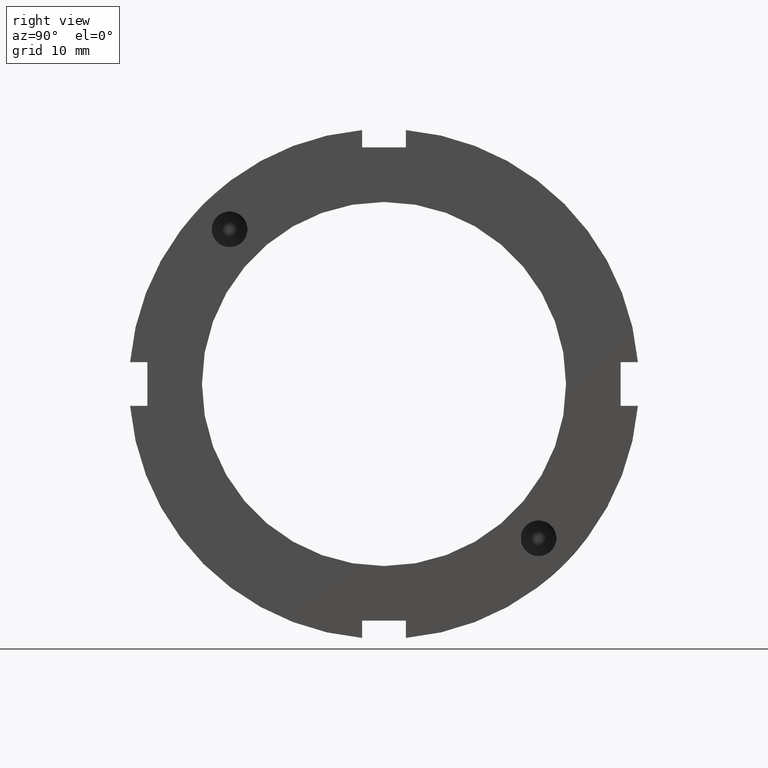
[diagram: clean part render]
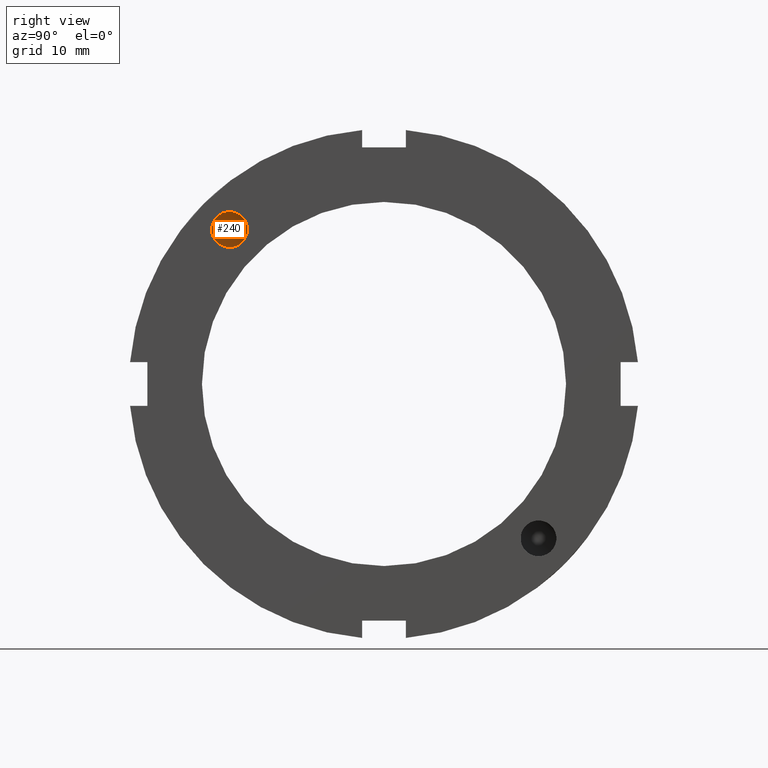
[diagram: same view with one face highlighted and labeled with its STEP entity id]
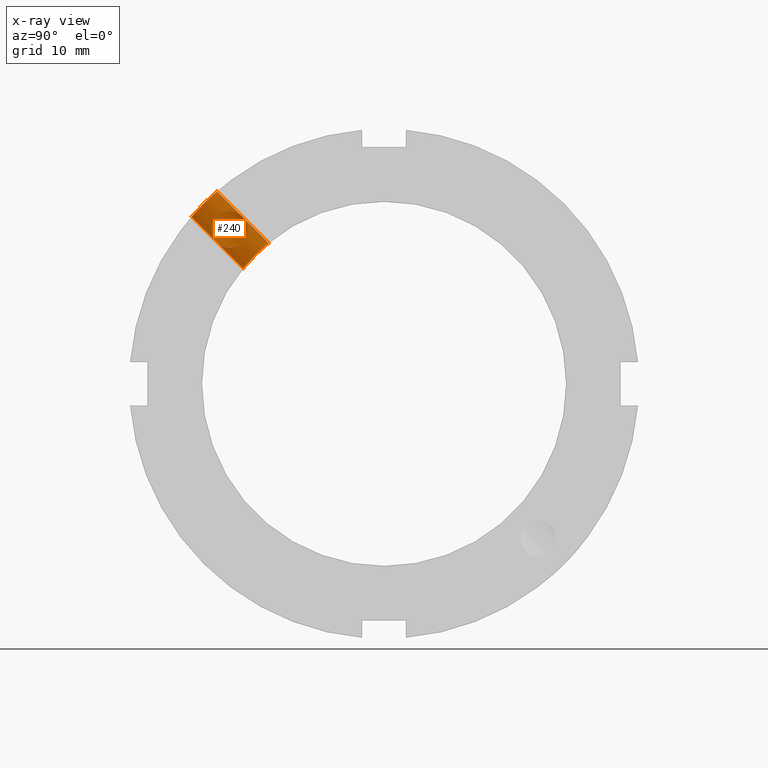
[diagram: x-ray of the same camera — body ghosted, the highlighted face saturated]
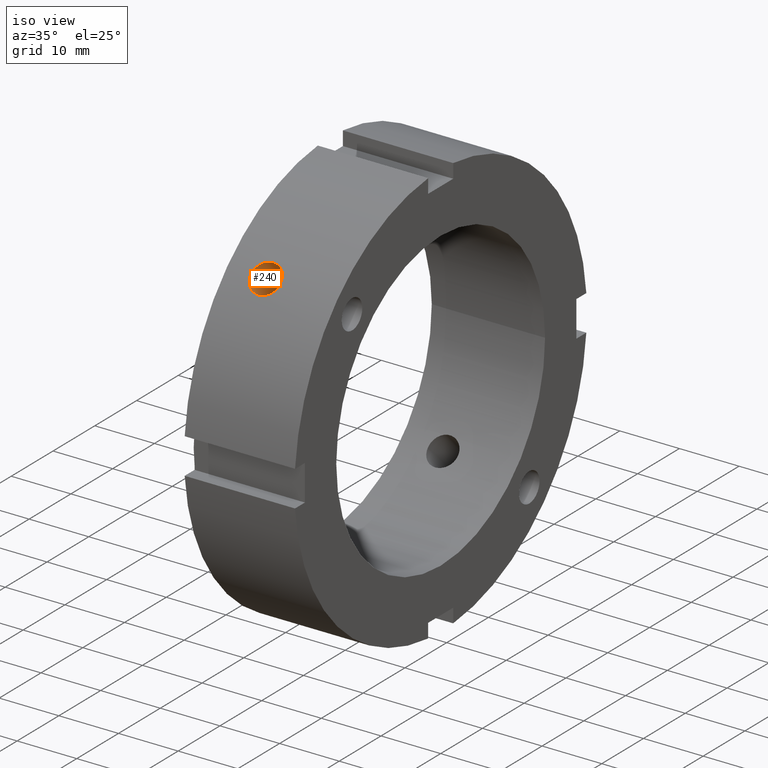
[diagram: same view with one face highlighted and labeled with its STEP entity id]
A machine part, right view. The second image highlights one B-rep face of the part: STEP entity #240.
The next image is the same camera in x-ray: the body ghosted, the highlighted face saturated — about 11% of this face is hidden behind the body in this view.
A second angle (iso view) of the same face is appended — the face is thin or edge-on in the first view.
In plain terms, the highlighted cylindrical surface (bore or boss wall) has radius 2.5 mm, axis along (0, -0.7071, 0.7071).
Its self-contained STEP definition (entity closure, byte-faithful):
#84=CARTESIAN_POINT('',(7.45362732501464,-19.474781414049289,22.951625457143557));
#85=VERTEX_POINT('',#84);
#86=CARTESIAN_POINT('',(7.453627325014676,-19.474781414049289,22.951625457143557));
#87=CARTESIAN_POINT('',(7.453627325014675,-19.548281791984685,23.025125835078953));
#88=CARTESIAN_POINT('',(7.485845144440702,-19.610837036625924,23.079431589738082));
#89=CARTESIAN_POINT('',(7.564508256890265,-19.733180553379079,23.177871432418122));
#90=CARTESIAN_POINT('',(7.612937817032464,-19.792489264129308,23.221002769903851));
#91=CARTESIAN_POINT('',(7.772228880000029,-19.977509045399998,23.343747503521854));
#92=CARTESIAN_POINT('',(7.895505545516908,-20.107519828547499,23.414545669080823));
#93=CARTESIAN_POINT('',(8.283828024816529,-20.537152457931107,23.597330917980258));
#94=CARTESIAN_POINT('',(8.561851096446011,-20.870054196267226,23.671703435596431));
#95=CARTESIAN_POINT('',(8.987347846502065,-21.491946694246057,23.671703435596431));
#96=CARTESIAN_POINT('',(9.170926118717715,-21.807864604421788,23.621144407465469));
#97=CARTESIAN_POINT('',(9.363473477026185,-22.265711746251849,23.441059725573265));
#98=CARTESIAN_POINT('',(9.414345366287378,-22.415921810929436,23.364088263739372));
#99=CARTESIAN_POINT('',(9.482622830029023,-22.699179580383095,23.179090495411124));
#100=CARTESIAN_POINT('',(9.499999999999989,-22.832215401636834,23.07103551265028));
#101=CARTESIAN_POINT('',(9.499999999999991,-23.071035512650269,22.832215401636844));
#102=CARTESIAN_POINT('',(9.482622830029024,-23.179090495411106,22.699179580383113));
#103=CARTESIAN_POINT('',(9.414345366287385,-23.364088263739355,22.415921810929458));
#104=CARTESIAN_POINT('',(9.363473477026194,-23.441059725573254,22.265711746251867));
#105=CARTESIAN_POINT('',(9.170926118717732,-23.621144407465451,21.807864604421816));
#106=CARTESIAN_POINT('',(8.987347846502088,-23.671703435596424,21.491946694246092));
#107=CARTESIAN_POINT('',(8.561851096446054,-23.671703435596424,20.870054196267272));
#108=CARTESIAN_POINT('',(8.283828024816582,-23.597330917980255,20.537152457931146));
#109=CARTESIAN_POINT('',(7.895505545516977,-23.414545669080816,20.107519828547535));
#110=CARTESIAN_POINT('',(7.772228880000103,-23.343747503521854,19.977509045400033));
#111=CARTESIAN_POINT('',(7.612937817032548,-23.221002769903851,19.79248926412934));
#112=CARTESIAN_POINT('',(7.564508256890381,-23.177871432418115,19.7331805533791));
#113=CARTESIAN_POINT('',(7.485845144440827,-23.079431589738071,19.610837036625938));
#114=CARTESIAN_POINT('',(7.453627325014779,-23.025125835078942,19.548281791984707));
#115=CARTESIAN_POINT('',(7.453627325014774,-22.87812507920815,19.401281036113915));
#116=CARTESIAN_POINT('',(7.485845144440821,-22.815569834566926,19.346975281454796));
#117=CARTESIAN_POINT('',(7.564508256890364,-22.693226317813767,19.248535438774756));
#118=CARTESIAN_POINT('',(7.612937817032536,-22.633917607063534,19.20540410128902));
#119=CARTESIAN_POINT('',(7.772228880000084,-22.448897825792841,19.082659367671017));
#120=CARTESIAN_POINT('',(7.895505545516956,-22.318887042645329,19.011861202112041));
#121=CARTESIAN_POINT('',(8.283828024816556,-21.889254413261725,18.829075953212605));
#122=CARTESIAN_POINT('',(8.561851096446034,-21.556352674925613,18.754703435596436));
#123=CARTESIAN_POINT('',(8.987347846502074,-20.934460176946793,18.754703435596433));
#124=CARTESIAN_POINT('',(9.170926118717723,-20.618542266771058,18.805262463727395));
#125=CARTESIAN_POINT('',(9.36347347702619,-20.160695124941,18.985347145619595));
#126=CARTESIAN_POINT('',(9.414345366287385,-20.010485060263399,19.062318607453488));
#127=CARTESIAN_POINT('',(9.482622830029024,-19.72722729080974,19.247316375781736));
#128=CARTESIAN_POINT('',(9.499999999999991,-19.594191469556012,19.355371358542584));
#129=CARTESIAN_POINT('',(9.499999999999991,-19.355371358542577,19.594191469556019));
#130=CARTESIAN_POINT('',(9.482622830029024,-19.247316375781725,19.727227290809751));
#131=CARTESIAN_POINT('',(9.41434536628738,-19.062318607453477,20.010485060263413));
#132=CARTESIAN_POINT('',(9.363473477026185,-18.985347145619581,20.160695124941007));
#133=CARTESIAN_POINT('',(9.170926118717715,-18.805262463727384,20.618542266771062));
#134=CARTESIAN_POINT('',(8.987347846502065,-18.754703435596415,20.934460176946793));
#135=CARTESIAN_POINT('',(8.561851096446011,-18.754703435596415,21.556352674925616));
#136=CARTESIAN_POINT('',(8.283828024816526,-18.829075953212598,21.889254413261746));
#137=CARTESIAN_POINT('',(7.895505545516905,-19.011861202112033,22.318887042645351));
#138=CARTESIAN_POINT('',(7.772228880000029,-19.082659367671006,22.448897825792855));
#139=CARTESIAN_POINT('',(7.612937817032465,-19.205404101289002,22.633917607063545));
#140=CARTESIAN_POINT('',(7.564508256890285,-19.248535438774741,22.693226317813789));
#141=CARTESIAN_POINT('',(7.485845144440727,-19.346975281454782,22.815569834566944));
#142=CARTESIAN_POINT('',(7.453627325014684,-19.401281036113893,22.878125079208161));
#143=CARTESIAN_POINT('',(7.453627325014684,-19.474781414049289,22.951625457143557));
#144=B_SPLINE_CURVE_WITH_KNOTS('',3,(#86,#87,#88,#89,#90,#91,#92,#93,#94,#95,#96,#97,#98,#99,#100,#101,#102,#103,#104,#105,#106,#107,#108,#109,#110,#111,#112,#113,#114,#115,#116,#117,#118,#119,#120,#121,#122,#123,#124,#125,#126,#127,#128,#129,#130,#131,#132,#133,#134,#135,#136,#137,#138,#139,#140,#141,#142,#143),.UNSPECIFIED.,.T.,.U.,(4,2,2,2,2,2,2,2,2,2,2,2,2,2,2,2,2,2,2,2,2,2,2,2,2,2,2,2,4),(0.0,0.031183569394737,0.062367138789473,0.124734277578947,0.249468555157893,0.350791347146689,0.401452743141086,0.452114139135484,0.502775535129881,0.553436931124277,0.654759723113071,0.779494000692013,0.841861139481485,0.87304470887622,0.904228278270956,0.935411847665691,0.966595417060427,1.028962555849898,1.153696833428841,1.255019625417636,1.305681021412034,1.356342417406431,1.407003813400829,1.457665209395226,1.558988001384021,1.683722278962967,1.74608941775244,1.777272987147177,1.808456556541913),.UNSPECIFIED.);
#145=EDGE_CURVE('',#85,#85,#144,.T.);
#150=CARTESIAN_POINT('',(6.999999999999991,-71.024643610510282,71.02464361051031));
#151=DIRECTION('',(0.0,-0.707106781186547,0.707106781186548));
#152=DIRECTION('',(1.0,0.0,0.0));
#153=AXIS2_PLACEMENT_3D('',#150,#151,#152);
#154=CYLINDRICAL_SURFACE('',#153,2.5);
#155=CARTESIAN_POINT('',(6.999999999999991,-26.453289025630742,22.917755119698));
#156=VERTEX_POINT('',#155);
#157=CARTESIAN_POINT('',(6.999999999999992,-26.453289025630738,22.917755119698011));
#158=CARTESIAN_POINT('',(6.685979550826577,-26.453289025630738,22.917755119698011));
#159=CARTESIAN_POINT('',(6.351101312387696,-26.412201968584572,22.965450920460029));
#160=CARTESIAN_POINT('',(5.735184683418414,-26.243703939774605,23.157814065553552));
#161=CARTESIAN_POINT('',(5.454137198955172,-26.116124570931589,23.302304709737239));
#162=CARTESIAN_POINT('',(5.010329090823675,-25.818175393671751,23.631994978088102));
#163=CARTESIAN_POINT('',(4.817946388959292,-25.627890966716521,23.839171838510502));
#164=CARTESIAN_POINT('',(4.562778887486544,-25.204282946558848,24.28660187215856));
#165=CARTESIAN_POINT('',(4.499999999999991,-24.97078313473423,24.526691548324095));
#166=CARTESIAN_POINT('',(4.499999999999991,-24.526691548324095,24.970783134734233));
#167=CARTESIAN_POINT('',(4.562778887486539,-24.28660187215857,25.204282946558855));
#168=CARTESIAN_POINT('',(4.817946388959284,-23.839171838510502,25.627890966716524));
#169=CARTESIAN_POINT('',(5.010329090823675,-23.631994978088095,25.818175393671751));
#170=CARTESIAN_POINT('',(5.454137198955172,-23.302304709737236,26.116124570931593));
#171=CARTESIAN_POINT('',(5.735184683418416,-23.157814065553538,26.243703939774612));
#172=CARTESIAN_POINT('',(6.351101312387696,-22.965450920460022,26.412201968584583));
#173=CARTESIAN_POINT('',(6.685979550826576,-22.917755119698008,26.453289025630742));
#174=CARTESIAN_POINT('',(7.314020449173405,-22.917755119698008,26.453289025630742));
#175=CARTESIAN_POINT('',(7.648898687612285,-22.965450920460022,26.412201968584583));
#176=CARTESIAN_POINT('',(8.264815316581567,-23.157814065553538,26.243703939774612));
#177=CARTESIAN_POINT('',(8.545862801044811,-23.302304709737236,26.116124570931593));
#178=CARTESIAN_POINT('',(8.989670909176306,-23.631994978088095,25.818175393671751));
#179=CARTESIAN_POINT('',(9.182053611040693,-23.839171838510499,25.627890966716535));
#180=CARTESIAN_POINT('',(9.43722111251344,-24.28660187215856,25.204282946558859));
#181=CARTESIAN_POINT('',(9.499999999999991,-24.526691548324095,24.970783134734233));
#182=CARTESIAN_POINT('',(9.499999999999991,-24.970783134734226,24.526691548324095));
#183=CARTESIAN_POINT('',(9.437221112513438,-25.204282946558848,24.28660187215856));
#184=CARTESIAN_POINT('',(9.18205361104069,-25.627890966716521,23.839171838510502));
#185=CARTESIAN_POINT('',(8.989670909176306,-25.818175393671744,23.631994978088102));
#186=CARTESIAN_POINT('',(8.545862801044811,-26.116124570931589,23.302304709737239));
#187=CARTESIAN_POINT('',(8.264815316581567,-26.243703939774605,23.157814065553545));
#188=CARTESIAN_POINT('',(7.648898687612285,-26.412201968584572,22.965450920460029));
#189=CARTESIAN_POINT('',(7.314020449173406,-26.453289025630738,22.917755119698011));
#190=CARTESIAN_POINT('',(6.999999999999991,-26.453289025630738,22.917755119698011));
#191=B_SPLINE_CURVE_WITH_KNOTS('',3,(#157,#158,#159,#160,#161,#162,#163,#164,#165,#166,#167,#168,#169,#170,#171,#172,#173,#174,#175,#176,#177,#178,#179,#180,#181,#182,#183,#184,#185,#186,#187,#188,#189,#190),.UNSPECIFIED.,.T.,.U.,(4,2,2,2,2,2,2,2,2,2,2,2,2,2,2,2,4),(0.0,0.094206134752024,0.188412269504049,0.282618321169598,0.376824372835147,0.471030424500697,0.565236476166246,0.65944261091827,0.753648745670295,0.847854880422319,0.942061015174344,1.036267066839893,1.130473118505442,1.224679170170991,1.318885221836541,1.413091356588565,1.507297491340589),.UNSPECIFIED.);
#192=EDGE_CURVE('',#156,#156,#191,.T.);
#193=ORIENTED_EDGE('',*,*,#192,.F.);
#194=EDGE_LOOP('',(#193));
#195=FACE_OUTER_BOUND('',#194,.T.);
#196=ORIENTED_EDGE('',*,*,#145,.T.);
#197=EDGE_LOOP('',(#196));
#198=FACE_BOUND('',#197,.T.);
#199=CARTESIAN_POINT('',(6.999999999999991,-19.356826052304228,15.821292146371491));
#200=VERTEX_POINT('',#199);
#201=CARTESIAN_POINT('',(6.999999999999991,-19.356826052304225,15.821292146371498));
#202=CARTESIAN_POINT('',(7.314131518358572,-19.356826052304225,15.821292146371498));
#203=CARTESIAN_POINT('',(7.649057145595561,-19.317045281653897,15.870355491965265));
#204=CARTESIAN_POINT('',(8.264942876141339,-19.153334578612142,16.06755103627852));
#205=CARTESIAN_POINT('',(8.545920952312564,-19.029168650815485,16.215431027932663));
#206=CARTESIAN_POINT('',(8.989612198510145,-18.737671794442385,16.551408349438397));
#207=CARTESIAN_POINT('',(9.181978302160339,-18.550821169181116,16.761921198428496));
#208=CARTESIAN_POINT('',(9.437177996889441,-18.132006488581933,17.214102039008431));
#209=CARTESIAN_POINT('',(9.499999999999991,-17.899793300421422,17.455545758905956));
#210=CARTESIAN_POINT('',(9.499999999999991,-17.455545758905949,17.899793300421422));
#211=CARTESIAN_POINT('',(9.437177996889442,-17.214102039008424,18.132006488581936));
#212=CARTESIAN_POINT('',(9.181978302160342,-16.761921198428492,18.550821169181116));
#213=CARTESIAN_POINT('',(8.989612198510145,-16.551408349438397,18.737671794442388));
#214=CARTESIAN_POINT('',(8.545920952312567,-16.215431027932659,19.029168650815489));
#215=CARTESIAN_POINT('',(8.26494287614134,-16.067551036278513,19.153334578612149));
#216=CARTESIAN_POINT('',(7.649057145595563,-15.870355491965253,19.317045281653908));
#217=CARTESIAN_POINT('',(7.314131518358574,-15.821292146371492,19.356826052304228));
#218=CARTESIAN_POINT('',(6.685868481641409,-15.821292146371492,19.356826052304228));
#219=CARTESIAN_POINT('',(6.350942854404417,-15.870355491965253,19.317045281653908));
#220=CARTESIAN_POINT('',(5.73505712385864,-16.067551036278513,19.153334578612149));
#221=CARTESIAN_POINT('',(5.454079047687415,-16.215431027932659,19.029168650815489));
#222=CARTESIAN_POINT('',(5.010387801489836,-16.551408349438397,18.737671794442388));
#223=CARTESIAN_POINT('',(4.818021697839638,-16.761921198428492,18.55082116918112));
#224=CARTESIAN_POINT('',(4.562822003110538,-17.214102039008424,18.132006488581936));
#225=CARTESIAN_POINT('',(4.499999999999989,-17.455545758905949,17.899793300421422));
#226=CARTESIAN_POINT('',(4.499999999999992,-17.899793300421422,17.455545758905956));
#227=CARTESIAN_POINT('',(4.562822003110539,-18.132006488581933,17.214102039008431));
#228=CARTESIAN_POINT('',(4.818021697839641,-18.550821169181116,16.761921198428499));
#229=CARTESIAN_POINT('',(5.010387801489835,-18.737671794442385,16.551408349438397));
#230=CARTESIAN_POINT('',(5.454079047687416,-19.029168650815485,16.215431027932663));
#231=CARTESIAN_POINT('',(5.73505712385864,-19.153334578612142,16.067551036278516));
#232=CARTESIAN_POINT('',(6.350942854404419,-19.3170452816539,15.87035549196526));
#233=CARTESIAN_POINT('',(6.68586848164141,-19.356826052304225,15.821292146371498));
#234=CARTESIAN_POINT('',(6.999999999999991,-19.356826052304225,15.821292146371498));
#235=B_SPLINE_CURVE_WITH_KNOTS('',3,(#201,#202,#203,#204,#205,#206,#207,#208,#209,#210,#211,#212,#213,#214,#215,#216,#217,#218,#219,#220,#221,#222,#223,#224,#225,#226,#227,#228,#229,#230,#231,#232,#233,#234),.UNSPECIFIED.,.T.,.U.,(4,2,2,2,2,2,2,2,2,2,2,2,2,2,2,2,4),(0.0,0.094239455507574,0.188478911015149,0.282718045754461,0.376957180493773,0.471196315233085,0.565435449972397,0.659674905479972,0.753914360987546,0.848153816495121,0.942393272002695,1.036632406742007,1.13087154148132,1.225110676220632,1.319349810959944,1.413589266467518,1.507828721975093),.UNSPECIFIED.);
#236=EDGE_CURVE('',#200,#200,#235,.T.);
#237=ORIENTED_EDGE('',*,*,#236,.F.);
#238=EDGE_LOOP('',(#237));
#239=FACE_BOUND('',#238,.T.);
#240=ADVANCED_FACE('',(#195,#198,#239),#154,.F.);